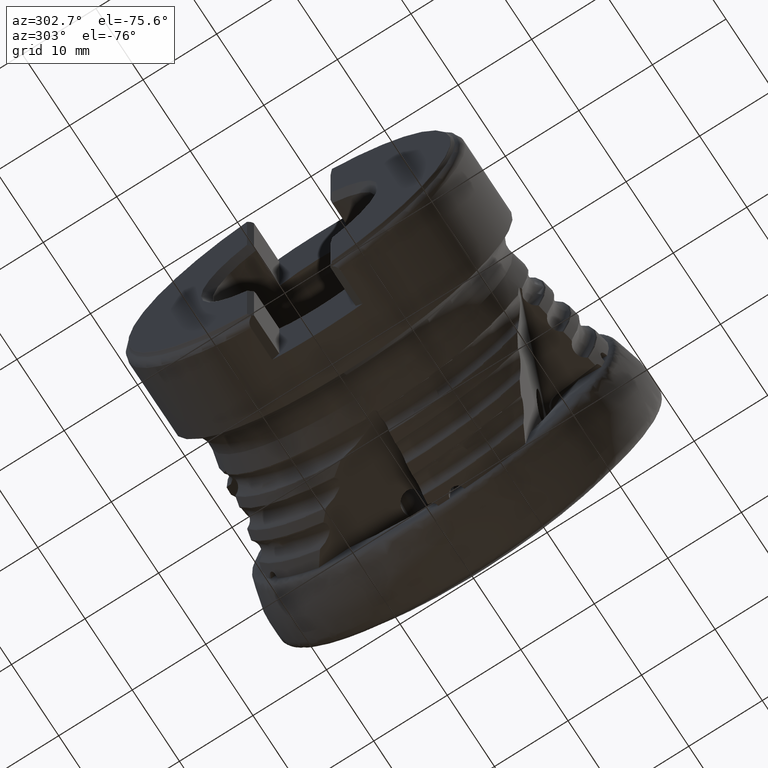
[diagram: clean part render]
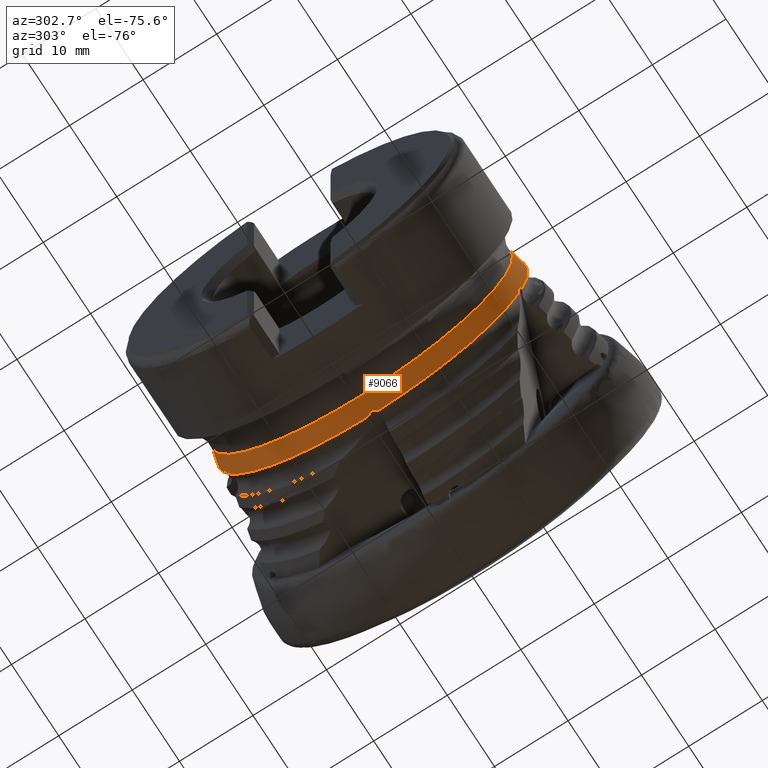
[diagram: same view with one face highlighted and labeled with its STEP entity id]
A machine part, auxiliary view. The second image highlights one B-rep face of the part: STEP entity #9066.
In plain terms, the highlighted conical surface has half-angle 13.017 deg.
Its self-contained STEP definition (entity closure, byte-faithful):
#2 = EDGE_CURVE ( 'NONE', #4650, #2316, #6004, .T. ) ;
#169 = CARTESIAN_POINT ( 'NONE',  ( -21.25462601103393800, -20.18059516773503500, -6.012737504412660500 ) ) ;
#181 = VERTEX_POINT ( 'NONE', #9399 ) ;
#225 = EDGE_CURVE ( 'NONE', #9917, #3830, #6012, .T. ) ;
#325 = CARTESIAN_POINT ( 'NONE',  ( -21.57295718493792300, -12.23204566807370200, 17.04977676883540400 ) ) ;
#327 = DIRECTION ( 'NONE',  ( 0.0000000000000000000, 0.0000000000000000000, -1.000000000000000000 ) ) ;
#395 = CIRCLE ( 'NONE', #5603, 21.05728932272577900 ) ;
#556 = DIRECTION ( 'NONE',  ( -1.000000000000000000, 0.0000000000000000000, 0.0000000000000000000 ) ) ;
#571 = DIRECTION ( 'NONE',  ( 0.0000000000000000000, 0.0000000000000000000, -1.000000000000000000 ) ) ;
#611 = VERTEX_POINT ( 'NONE', #2857 ) ;
#632 = CARTESIAN_POINT ( 'NONE',  ( -21.37091553582917300, -19.80028573833173400, -7.095884450294850200 ) ) ;
#756 = DIRECTION ( 'NONE',  ( 0.0000000000000000000, 0.0000000000000000000, -1.000000000000000000 ) ) ;
#828 = VERTEX_POINT ( 'NONE', #8734 ) ;
#958 = CARTESIAN_POINT ( 'NONE',  ( -21.47302716258368700, 0.2760392402548203500, -21.00795885827966500 ) ) ;
#992 = EDGE_LOOP ( 'NONE', ( #7827, #2483, #9311, #4158, #6705, #9514, #3614, #6789, #2481, #1331, #4017, #1373, #9626, #3206, #5915 ) ) ;
#1000 = CARTESIAN_POINT ( 'NONE',  ( -21.56094342304823300, 19.93527489107565700, -6.558725386170687300 ) ) ;
#1016 = CARTESIAN_POINT ( 'NONE',  ( -21.47302716258370100, 12.12484796118336300, 17.15804752795370200 ) ) ;
#1018 = CARTESIAN_POINT ( 'NONE',  ( -21.57295718493783500, 12.43539130997343100, 16.90203751211065600 ) ) ;
#1025 = DIRECTION ( 'NONE',  ( -1.000000000000000000, 0.0000000000000000000, 0.0000000000000000000 ) ) ;
#1058 = CARTESIAN_POINT ( 'NONE',  ( -21.25462601103393800, 0.0000000000000000000, 0.0000000000000000000 ) ) ;
#1133 = CARTESIAN_POINT ( 'NONE',  ( -8.049999999999995400, 0.0000000000000000000, 0.0000000000000000000 ) ) ;
#1179 = CARTESIAN_POINT ( 'NONE',  ( -21.25462601103393500, 11.56729500981298900, 17.59565627582377400 ) ) ;
#1222 = B_SPLINE_CURVE_WITH_KNOTS ( 'NONE', 3,
 ( #6315, #5541, #2430, #7869, #3219, #8661, #3999, #9487 ),
 .UNSPECIFIED., .F., .F.,
 ( 4, 2, 2, 4 ),
 ( 3.916680348103884800E-018, 0.0001472294602497436100, 0.0002944589204994832700, 0.0005889178409989613300 ),
 .UNSPECIFIED. ) ;
#1260 = EDGE_CURVE ( 'NONE', #828, #181, #3559, .T. ) ;
#1290 = CIRCLE ( 'NONE', #6401, 21.05728932272577900 ) ;
#1300 = DIRECTION ( 'NONE',  ( -1.000000000000000000, 0.0000000000000000000, 0.0000000000000000000 ) ) ;
#1331 = ORIENTED_EDGE ( 'NONE', *, *, #1898, .F. ) ;
#1358 = AXIS2_PLACEMENT_3D ( 'NONE', #1058, #1025, #756 ) ;
#1373 = ORIENTED_EDGE ( 'NONE', *, *, #3276, .T. ) ;
#1561 = B_SPLINE_CURVE_WITH_KNOTS ( 'NONE', 3,
 ( #1000, #5693, #7256, #2589, #8045, #3375, #8845, #4155 ),
 .UNSPECIFIED., .F., .F.,
 ( 4, 2, 2, 4 ),
 ( 2.549512416582222300E-017, 0.0001472294602497645400, 0.0002944589204995035400, 0.0005889178409989739100 ),
 .UNSPECIFIED. ) ;
#1795 = VERTEX_POINT ( 'NONE', #7154 ) ;
#1898 = EDGE_CURVE ( 'NONE', #7698, #3830, #3153, .T. ) ;
#1917 = CARTESIAN_POINT ( 'NONE',  ( -21.56094342304822200, -19.98309823024369100, -6.411540282520427100 ) ) ;
#1977 = CARTESIAN_POINT ( 'NONE',  ( -23.65877367367429300, 0.0000000000000000000, 0.0000000000000000000 ) ) ;
#1998 = EDGE_CURVE ( 'NONE', #828, #5755, #4975, .T. ) ;
#2060 = EDGE_CURVE ( 'NONE', #4118, #5755, #1290, .T. ) ;
#2316 = VERTEX_POINT ( 'NONE', #3336 ) ;
#2430 = CARTESIAN_POINT ( 'NONE',  ( -21.57267511451529500, -0.1764214091993540300, -20.98307287266794000 ) ) ;
#2481 = ORIENTED_EDGE ( 'NONE', *, *, #225, .T. ) ;
#2483 = ORIENTED_EDGE ( 'NONE', *, *, #3668, .T. ) ;
#2555 = CARTESIAN_POINT ( 'NONE',  ( -21.25462601103372500, 0.9843290214499743600, -21.03427037000605200 ) ) ;
#2568 = ORIENTED_EDGE ( 'NONE', *, *, #6188, .T. ) ;
#2589 = CARTESIAN_POINT ( 'NONE',  ( -21.54703262115895500, 19.87698501630151400, -6.743497876754466900 ) ) ;
#2592 =( BOUNDED_CURVE ( )  B_SPLINE_CURVE ( 3, ( #8061, #1016, #4176, #9667 ),
 .UNSPECIFIED., .F., .F. ) 
 B_SPLINE_CURVE_WITH_KNOTS ( ( 4, 4 ),
 ( 3.222376444049669600, 3.248535386682279500 ),
 .UNSPECIFIED. ) 
 CURVE ( )  GEOMETRIC_REPRESENTATION_ITEM ( )  RATIONAL_B_SPLINE_CURVE ( ( 1.000000000000000000, 0.9999429766229635000, 0.9999429766229635000, 1.000000000000000000 ) ) 
 REPRESENTATION_ITEM ( '' )  );
#2724 = CARTESIAN_POINT ( 'NONE',  ( -21.54703262115897300, -12.11709007430234100, 17.13900303644616900 ) ) ;
#2777 = DIRECTION ( 'NONE',  ( 0.0000000000000000000, 0.0000000000000000000, -1.000000000000000000 ) ) ;
#2783 = CARTESIAN_POINT ( 'NONE',  ( -21.25462601103393100, -13.15997282263134400, 16.43850811140071100 ) ) ;
#2809 = VERTEX_POINT ( 'NONE', #4428 ) ;
#2857 = CARTESIAN_POINT ( 'NONE',  ( -21.25462601103393800, 19.86064287829813700, -6.997449398294115500 ) ) ;
#2972 = DIRECTION ( 'NONE',  ( -1.000000000000000000, 0.0000000000000000000, 0.0000000000000000000 ) ) ;
#3018 = B_SPLINE_CURVE_WITH_KNOTS ( 'NONE', 3,
 ( #1917, #6567, #8169, #3497, #8970, #4282, #9777, #5087 ),
 .UNSPECIFIED., .F., .F.,
 ( 4, 2, 2, 4 ),
 ( 4.336808689942017700E-018, 0.0001472294602497424200, 0.0002944589204994805000, 0.0005889178409989604700 ),
 .UNSPECIFIED. ) ;
#3153 =( BOUNDED_CURVE ( )  B_SPLINE_CURVE ( 3, ( #8089, #3344, #4203, #9691 ),
 .UNSPECIFIED., .F., .F. ) 
 B_SPLINE_CURVE_WITH_KNOTS ( ( 4, 4 ),
 ( 3.222376444049668300, 3.248535386682548600 ),
 .UNSPECIFIED. ) 
 CURVE ( )  GEOMETRIC_REPRESENTATION_ITEM ( )  RATIONAL_B_SPLINE_CURVE ( ( 1.000000000000000000, 0.9999429766229623900, 0.9999429766229623900, 1.000000000000000000 ) ) 
 REPRESENTATION_ITEM ( '' )  );
#3206 = ORIENTED_EDGE ( 'NONE', *, *, #9470, .T. ) ;
#3219 = CARTESIAN_POINT ( 'NONE',  ( -21.52207124211411900, -0.3149605938983098300, -20.99313075547535600 ) ) ;
#3276 = EDGE_CURVE ( 'NONE', #611, #10037, #5779, .T. ) ;
#3336 = CARTESIAN_POINT ( 'NONE',  ( -21.25462601103394200, -19.70060550522390800, -7.436099538637412500 ) ) ;
#3344 = CARTESIAN_POINT ( 'NONE',  ( -21.47302716258284900, 20.06505698258175500, -6.229287386137404100 ) ) ;
#3375 = CARTESIAN_POINT ( 'NONE',  ( -21.42851088592118800, 19.85233478373862300, -6.899888208850295100 ) ) ;
#3497 = CARTESIAN_POINT ( 'NONE',  ( -21.54703262115896600, -20.04454727594593100, -6.227794268794940400 ) ) ;
#3502 = CARTESIAN_POINT ( 'NONE',  ( -21.42851088592120200, -12.00522368643660600, 17.25103642970158200 ) ) ;
#3559 = B_SPLINE_CURVE_WITH_KNOTS ( 'NONE', 3,
 ( #5049, #325, #7386, #2724, #8180, #3502, #8983, #4292 ),
 .UNSPECIFIED., .F., .F.,
 ( 4, 2, 2, 4 ),
 ( 1.599336020787782300E-017, 0.0001472294602497594700, 0.0002944589204995029500, 0.0005889178409989870300 ),
 .UNSPECIFIED. ) ;
#3614 = ORIENTED_EDGE ( 'NONE', *, *, #10175, .F. ) ;
#3668 = EDGE_CURVE ( 'NONE', #4650, #4118, #3018, .T. ) ;
#3830 = VERTEX_POINT ( 'NONE', #4244 ) ;
#3855 = CARTESIAN_POINT ( 'NONE',  ( -21.54703262115897300, 12.55577376528316300, 16.82028067860623500 ) ) ;
#3974 = CARTESIAN_POINT ( 'NONE',  ( -21.25462601103372500, 0.9843290214499743600, -21.03427037000605200 ) ) ;
#3999 = CARTESIAN_POINT ( 'NONE',  ( -21.34375199877417700, -0.4796149443656814200, -21.03125024178168800 ) ) ;
#4017 = ORIENTED_EDGE ( 'NONE', *, *, #4129, .T. ) ;
#4118 = VERTEX_POINT ( 'NONE', #169 ) ;
#4120 = EDGE_CURVE ( 'NONE', #1795, #10037, #9938, .T. ) ;
#4129 = EDGE_CURVE ( 'NONE', #7698, #611, #1561, .T. ) ;
#4155 = CARTESIAN_POINT ( 'NONE',  ( -21.25462601103393800, 19.86064287829813700, -6.997449398294115500 ) ) ;
#4158 = ORIENTED_EDGE ( 'NONE', *, *, #1998, .F. ) ;
#4176 = CARTESIAN_POINT ( 'NONE',  ( -21.37091553582917700, 11.84791142393561000, 17.37900705857773400 ) ) ;
#4180 = VERTEX_POINT ( 'NONE', #6608 ) ;
#4203 = CARTESIAN_POINT ( 'NONE',  ( -21.37091553582712000, 20.18962388764758800, -5.897624837752318600 ) ) ;
#4244 = CARTESIAN_POINT ( 'NONE',  ( -21.25462601103032900, 20.30895429659633000, -5.563794478571051800 ) ) ;
#4282 = CARTESIAN_POINT ( 'NONE',  ( -21.42851088592120900, -20.11652874969432100, -6.086782789207413600 ) ) ;
#4292 = CARTESIAN_POINT ( 'NONE',  ( -21.25462601103393800, -11.95460004777494200, 17.33484846540980200 ) ) ;
#4428 = CARTESIAN_POINT ( 'NONE',  ( -21.56094342304818000, 12.39805724598654500, 16.93281548352755200 ) ) ;
#4459 = CONICAL_SURFACE ( 'NONE', #4887, 24.10999999999999900, 0.2271935026852402200 ) ;
#4589 = CARTESIAN_POINT ( 'NONE',  ( -21.56094342304822200, -19.98309823024369100, -6.411540282520427100 ) ) ;
#4611 = CARTESIAN_POINT ( 'NONE',  ( -21.25462601103393800, -0.5176936790873879500, -21.05092460856800700 ) ) ;
#4642 = CARTESIAN_POINT ( 'NONE',  ( -21.42851088592120600, 12.69689246893125100, 16.74850964392553400 ) ) ;
#4650 = VERTEX_POINT ( 'NONE', #4925 ) ;
#4887 = AXIS2_PLACEMENT_3D ( 'NONE', #1133, #5098, #327 ) ;
#4925 = CARTESIAN_POINT ( 'NONE',  ( -21.56094342304822200, -19.98309823024369100, -6.411540282520427100 ) ) ;
#4941 = CARTESIAN_POINT ( 'NONE',  ( -21.56094342304818000, 12.39805724598654500, 16.93281548352755200 ) ) ;
#4975 =( BOUNDED_CURVE ( )  B_SPLINE_CURVE ( 3, ( #8200, #5112, #7432, #2783 ),
 .UNSPECIFIED., .F., .F. ) 
 B_SPLINE_CURVE_WITH_KNOTS ( ( 4, 4 ),
 ( 3.222376444049668700, 3.248535386682282600 ),
 .UNSPECIFIED. ) 
 CURVE ( )  GEOMETRIC_REPRESENTATION_ITEM ( )  RATIONAL_B_SPLINE_CURVE ( ( 1.000000000000000000, 0.9999429766229635000, 0.9999429766229635000, 1.000000000000000000 ) ) 
 REPRESENTATION_ITEM ( '' )  );
#5049 = CARTESIAN_POINT ( 'NONE',  ( -21.56094342304826100, -12.27285411858911100, 17.02378088022111800 ) ) ;
#5087 = CARTESIAN_POINT ( 'NONE',  ( -21.25462601103393800, -20.18059516773503500, -6.012737504412660500 ) ) ;
#5098 = DIRECTION ( 'NONE',  ( 1.000000000000000000, -0.0000000000000000000, -0.0000000000000000000 ) ) ;
#5112 = CARTESIAN_POINT ( 'NONE',  ( -21.47302716258377200, -12.57148883414431300, 16.83354393900218300 ) ) ;
#5186 = AXIS2_PLACEMENT_3D ( 'NONE', #1977, #7426, #2777 ) ;
#5263 = CARTESIAN_POINT ( 'NONE',  ( -21.25462601103393800, 0.0000000000000000000, 0.0000000000000000000 ) ) ;
#5281 = DIRECTION ( 'NONE',  ( -1.000000000000000000, 0.0000000000000000000, 0.0000000000000000000 ) ) ;
#5364 = CARTESIAN_POINT ( 'NONE',  ( -21.25462601103393800, 12.79224601629906700, 16.72626304586478000 ) ) ;
#5438 = CARTESIAN_POINT ( 'NONE',  ( -21.25462601103393800, 12.79224601629906700, 16.72626304586478000 ) ) ;
#5511 = CARTESIAN_POINT ( 'NONE',  ( -21.25462601103393100, -13.15997282263134400, 16.43850811140071100 ) ) ;
#5541 = CARTESIAN_POINT ( 'NONE',  ( -21.57295718493787400, -0.1256745181583610600, -20.98337520534876100 ) ) ;
#5603 = AXIS2_PLACEMENT_3D ( 'NONE', #5982, #1300, #6766 ) ;
#5693 = CARTESIAN_POINT ( 'NONE',  ( -21.57295718493789800, 19.91754016104230400, -6.603743107225381200 ) ) ;
#5755 = VERTEX_POINT ( 'NONE', #5511 ) ;
#5779 = CIRCLE ( 'NONE', #8686, 21.05728932272577900 ) ;
#5915 = ORIENTED_EDGE ( 'NONE', *, *, #9209, .T. ) ;
#5982 = CARTESIAN_POINT ( 'NONE',  ( -21.25462601103393800, 0.0000000000000000000, 0.0000000000000000000 ) ) ;
#6004 =( BOUNDED_CURVE ( )  B_SPLINE_CURVE ( 3, ( #4589, #7691, #632, #6918 ),
 .UNSPECIFIED., .F., .T. ) 
 B_SPLINE_CURVE_WITH_KNOTS ( ( 4, 4 ),
 ( 3.222376444049669600, 3.248535386682281300 ),
 .UNSPECIFIED. ) 
 CURVE ( )  GEOMETRIC_REPRESENTATION_ITEM ( )  RATIONAL_B_SPLINE_CURVE ( ( 1.000000000000000000, 0.9999429766229635000, 0.9999429766229635000, 1.000000000000000000 ) ) 
 REPRESENTATION_ITEM ( '' )  );
#6012 = CIRCLE ( 'NONE', #1358, 21.05728932272577900 ) ;
#6033 = DIRECTION ( 'NONE',  ( 0.0000000000000000000, 0.0000000000000000000, -1.000000000000000000 ) ) ;
#6188 = EDGE_CURVE ( 'NONE', #4180, #4180, #7706, .T. ) ;
#6315 = CARTESIAN_POINT ( 'NONE',  ( -21.56094342304822200, -0.07737978822955218800, -20.98633069505777000 ) ) ;
#6401 = AXIS2_PLACEMENT_3D ( 'NONE', #9984, #5281, #571 ) ;
#6441 = CARTESIAN_POINT ( 'NONE',  ( -21.56094342304822200, -0.07737978822955218800, -20.98633069505777000 ) ) ;
#6496 = CARTESIAN_POINT ( 'NONE',  ( -21.57267511451529500, 12.47626870054622800, 16.87196464568035700 ) ) ;
#6567 = CARTESIAN_POINT ( 'NONE',  ( -21.57295718493788100, -19.99521128478383500, -6.364695968372132900 ) ) ;
#6581 = EDGE_CURVE ( 'NONE', #2809, #9917, #7751, .T. ) ;
#6589 = CARTESIAN_POINT ( 'NONE',  ( -21.56094342304823300, 19.93527489107565700, -6.558725386170687300 ) ) ;
#6608 = CARTESIAN_POINT ( 'NONE',  ( -23.65877367367429300, 0.0000000000000000000, -20.50148658864203100 ) ) ;
#6705 = ORIENTED_EDGE ( 'NONE', *, *, #1260, .T. ) ;
#6766 = DIRECTION ( 'NONE',  ( 0.0000000000000000000, 1.776356839400250500E-015, -1.000000000000000000 ) ) ;
#6777 = FACE_BOUND ( 'NONE', #6959, .T. ) ;
#6789 = ORIENTED_EDGE ( 'NONE', *, *, #6581, .T. ) ;
#6918 = CARTESIAN_POINT ( 'NONE',  ( -21.25462601103394200, -19.70060550522390800, -7.436099538637412500 ) ) ;
#6959 = EDGE_LOOP ( 'NONE', ( #2568 ) ) ;
#6996 = FACE_OUTER_BOUND ( 'NONE', #992, .T. ) ;
#7046 = VERTEX_POINT ( 'NONE', #4611 ) ;
#7154 = CARTESIAN_POINT ( 'NONE',  ( -21.56094342304822200, -0.07737978822955218800, -20.98633069505777000 ) ) ;
#7215 = CARTESIAN_POINT ( 'NONE',  ( -21.37091553582906700, 0.6299623587060869700, -21.02393966120845200 ) ) ;
#7256 = CARTESIAN_POINT ( 'NONE',  ( -21.57267511451528800, 19.90157097383275100, -6.651912842695327100 ) ) ;
#7386 = CARTESIAN_POINT ( 'NONE',  ( -21.57267511451529500, -12.19081286411875500, 17.07936045071225800 ) ) ;
#7426 = DIRECTION ( 'NONE',  ( 1.000000000000000000, -0.0000000000000000000, -0.0000000000000000000 ) ) ;
#7432 = CARTESIAN_POINT ( 'NONE',  ( -21.37091553582924400, -12.86721193195477200, 16.63844189068440100 ) ) ;
#7513 = AXIS2_PLACEMENT_3D ( 'NONE', #5263, #556, #6033 ) ;
#7623 = CARTESIAN_POINT ( 'NONE',  ( -21.25462601103393800, 0.0000000000000000000, 0.0000000000000000000 ) ) ;
#7691 = CARTESIAN_POINT ( 'NONE',  ( -21.47302716258373700, -19.89445534987425600, -6.754345222535697200 ) ) ;
#7698 = VERTEX_POINT ( 'NONE', #6589 ) ;
#7706 = CIRCLE ( 'NONE', #5186, 20.50148658864203100 ) ;
#7751 = B_SPLINE_CURVE_WITH_KNOTS ( 'NONE', 3,
 ( #4941, #1018, #6496, #3855, #9335, #4642, #10136, #5438 ),
 .UNSPECIFIED., .F., .F.,
 ( 4, 2, 2, 4 ),
 ( 1.734723475976807100E-018, 0.0001472294602497353200, 0.0002944589204994689000, 0.0005889178409989361800 ),
 .UNSPECIFIED. ) ;
#7827 = ORIENTED_EDGE ( 'NONE', *, *, #2, .F. ) ;
#7869 = CARTESIAN_POINT ( 'NONE',  ( -21.54703262115898000, -0.2711214313365530900, -20.98799156950319800 ) ) ;
#8045 = CARTESIAN_POINT ( 'NONE',  ( -21.52207124211410200, 19.86832562635805400, -6.786779493780397100 ) ) ;
#8061 = CARTESIAN_POINT ( 'NONE',  ( -21.56094342304818000, 12.39805724598654500, 16.93281548352755200 ) ) ;
#8089 = CARTESIAN_POINT ( 'NONE',  ( -21.56094342304823300, 19.93527489107565700, -6.558725386170687300 ) ) ;
#8169 = CARTESIAN_POINT ( 'NONE',  ( -21.57267511451528500, -20.01060540106102400, -6.316339381029547600 ) ) ;
#8180 = CARTESIAN_POINT ( 'NONE',  ( -21.52207124211411200, -12.08464418449394100, 17.16892873846154900 ) ) ;
#8200 = CARTESIAN_POINT ( 'NONE',  ( -21.56094342304826100, -12.27285411858911100, 17.02378088022111800 ) ) ;
#8365 = CIRCLE ( 'NONE', #7513, 21.05728932272577900 ) ;
#8418 = DIRECTION ( 'NONE',  ( 0.0000000000000000000, 0.0000000000000000000, -1.000000000000000000 ) ) ;
#8555 = VERTEX_POINT ( 'NONE', #1179 ) ;
#8607 = EDGE_CURVE ( 'NONE', #181, #8555, #395, .T. ) ;
#8661 = CARTESIAN_POINT ( 'NONE',  ( -21.42851088592120900, -0.4274748165390985200, -21.01287507556961700 ) ) ;
#8686 = AXIS2_PLACEMENT_3D ( 'NONE', #7623, #2972, #8418 ) ;
#8734 = CARTESIAN_POINT ( 'NONE',  ( -21.56094342304826100, -12.27285411858911100, 17.02378088022111800 ) ) ;
#8845 = CARTESIAN_POINT ( 'NONE',  ( -21.34375199877416000, 19.85369841971532500, -6.955154655814219200 ) ) ;
#8970 = CARTESIAN_POINT ( 'NONE',  ( -21.52207124211411200, -20.06298197850397000, -6.187688843374314900 ) ) ;
#8983 = CARTESIAN_POINT ( 'NONE',  ( -21.34375199877417700, -11.97384208864390900, 17.29654944963072800 ) ) ;
#9066 = ADVANCED_FACE ( 'NONE', ( #6996, #6777 ), #4459, .T. ) ;
#9209 = EDGE_CURVE ( 'NONE', #7046, #2316, #8365, .T. ) ;
#9311 = ORIENTED_EDGE ( 'NONE', *, *, #2060, .T. ) ;
#9335 = CARTESIAN_POINT ( 'NONE',  ( -21.52207124211411900, 12.59426113053801700, 16.79867035416832300 ) ) ;
#9399 = CARTESIAN_POINT ( 'NONE',  ( -21.25462601103393800, -11.95460004777494200, 17.33484846540980200 ) ) ;
#9470 = EDGE_CURVE ( 'NONE', #1795, #7046, #1222, .T. ) ;
#9487 = CARTESIAN_POINT ( 'NONE',  ( -21.25462601103393800, -0.5176936790873879500, -21.05092460856800700 ) ) ;
#9514 = ORIENTED_EDGE ( 'NONE', *, *, #8607, .T. ) ;
#9626 = ORIENTED_EDGE ( 'NONE', *, *, #4120, .F. ) ;
#9667 = CARTESIAN_POINT ( 'NONE',  ( -21.25462601103393500, 11.56729500981298900, 17.59565627582377400 ) ) ;
#9691 = CARTESIAN_POINT ( 'NONE',  ( -21.25462601103032900, 20.30895429659633000, -5.563794478571051800 ) ) ;
#9777 = CARTESIAN_POINT ( 'NONE',  ( -21.34375199877417700, -20.15011675684562700, -6.042872819511478300 ) ) ;
#9917 = VERTEX_POINT ( 'NONE', #5364 ) ;
#9938 =( BOUNDED_CURVE ( )  B_SPLINE_CURVE ( 3, ( #6441, #958, #7215, #2555 ),
 .UNSPECIFIED., .F., .F. ) 
 B_SPLINE_CURVE_WITH_KNOTS ( ( 4, 4 ),
 ( 3.222376444049669600, 3.248535386682294600 ),
 .UNSPECIFIED. ) 
 CURVE ( )  GEOMETRIC_REPRESENTATION_ITEM ( )  RATIONAL_B_SPLINE_CURVE ( ( 1.000000000000000000, 0.9999429766229633900, 0.9999429766229633900, 1.000000000000000000 ) ) 
 REPRESENTATION_ITEM ( '' )  );
#9984 = CARTESIAN_POINT ( 'NONE',  ( -21.25462601103393800, 0.0000000000000000000, 0.0000000000000000000 ) ) ;
#10037 = VERTEX_POINT ( 'NONE', #3974 ) ;
#10136 = CARTESIAN_POINT ( 'NONE',  ( -21.34375199877418100, 12.74987537013971900, 16.73272826747645700 ) ) ;
#10175 = EDGE_CURVE ( 'NONE', #2809, #8555, #2592, .T. ) ;